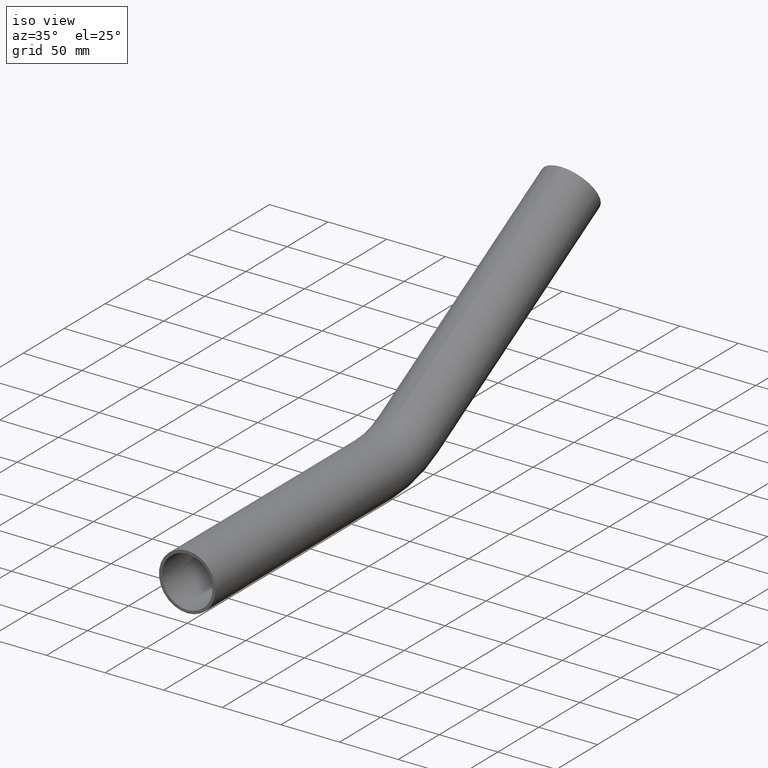
[diagram: clean part render]
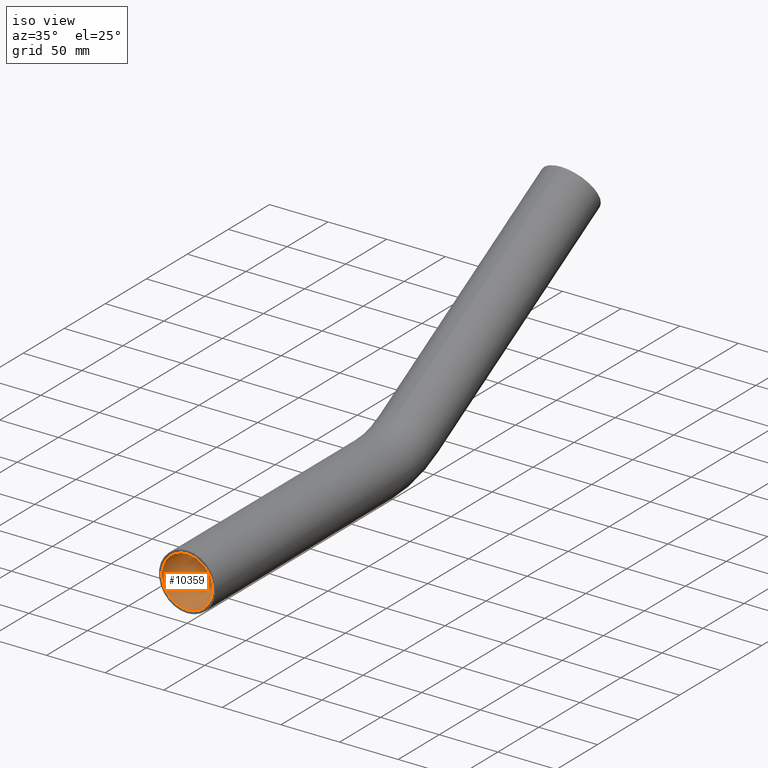
[diagram: same view with one face highlighted and labeled with its STEP entity id]
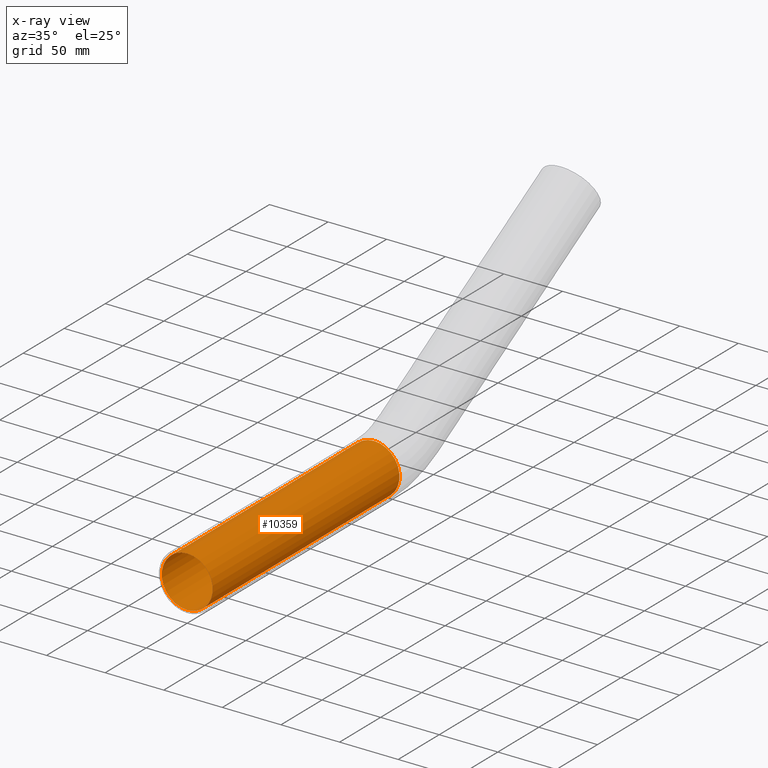
[diagram: x-ray of the same camera — body ghosted, the highlighted face saturated]
A machine part, iso view. The second image highlights one B-rep face of the part: STEP entity #10359.
The next image is the same camera in x-ray: the body ghosted, the highlighted face saturated — about 0% of this face is hidden behind the body in this view.
In plain terms, the highlighted cylindrical surface (bore or boss wall) has radius 21.65 mm, axis along (-0, -1, 0).
Its self-contained STEP definition (entity closure, byte-faithful):
#1235 = VERTEX_POINT ( 'NONE', #4793 ) ;
#2282 = DIRECTION ( 'NONE',  ( 0.000000000000000000, 0.000000000000000000, -1.000000000000000000 ) ) ;
#2348 = ORIENTED_EDGE ( 'NONE', *, *, #10759, .F. ) ;
#3100 = DIRECTION ( 'NONE',  ( 0.000000000000000000, 0.000000000000000000, -1.000000000000000000 ) ) ;
#3167 = EDGE_LOOP ( 'NONE', ( #11866 ) ) ;
#3539 = EDGE_LOOP ( 'NONE', ( #2348 ) ) ;
#3657 = FACE_OUTER_BOUND ( 'NONE', #3539, .T. ) ;
#4274 = AXIS2_PLACEMENT_3D ( 'NONE', #13722, #7417, #3100 ) ;
#4793 = CARTESIAN_POINT ( 'NONE',  ( 0.000000000000000000, 227.7470520370725353, -21.65000000000000568 ) ) ;
#5047 = VERTEX_POINT ( 'NONE', #12186 ) ;
#5748 = CIRCLE ( 'NONE', #12720, 21.65000000000000568 ) ;
#7417 = DIRECTION ( 'NONE',  ( -0.000000000000000000, -1.000000000000000000, 3.277534168615920763E-31 ) ) ;
#7473 = DIRECTION ( 'NONE',  ( -0.000000000000000000, 1.000000000000000000, -0.000000000000000000 ) ) ;
#8199 = CARTESIAN_POINT ( 'NONE',  ( 0.000000000000000000, 0.000000000000000000, 0.000000000000000000 ) ) ;
#8338 = DIRECTION ( 'NONE',  ( 0.000000000000000000, 1.000000000000000000, 0.000000000000000000 ) ) ;
#9379 = DIRECTION ( 'NONE',  ( 0.000000000000000000, 0.000000000000000000, 1.000000000000000000 ) ) ;
#10095 = CIRCLE ( 'NONE', #13361, 21.65000000000000568 ) ;
#10359 = ADVANCED_FACE ( 'NONE', ( #10850, #3657 ), #11955, .F. ) ;
#10745 = CARTESIAN_POINT ( 'NONE',  ( 0.000000000000000000, 227.7470520370725353, 0.000000000000000000 ) ) ;
#10759 = EDGE_CURVE ( 'NONE', #5047, #5047, #10095, .T. ) ;
#10850 = FACE_OUTER_BOUND ( 'NONE', #3167, .T. ) ;
#11866 = ORIENTED_EDGE ( 'NONE', *, *, #12123, .T. ) ;
#11955 = CYLINDRICAL_SURFACE ( 'NONE', #4274, 21.65000000000000568 ) ;
#12123 = EDGE_CURVE ( 'NONE', #1235, #1235, #5748, .T. ) ;
#12186 = CARTESIAN_POINT ( 'NONE',  ( 0.000000000000000000, 0.000000000000000000, 21.65000000000000568 ) ) ;
#12720 = AXIS2_PLACEMENT_3D ( 'NONE', #10745, #7473, #2282 ) ;
#13361 = AXIS2_PLACEMENT_3D ( 'NONE', #8199, #8338, #9379 ) ;
#13722 = CARTESIAN_POINT ( 'NONE',  ( 0.000000000000000000, 227.7470520370725353, -7.464487448530533640E-29 ) ) ;